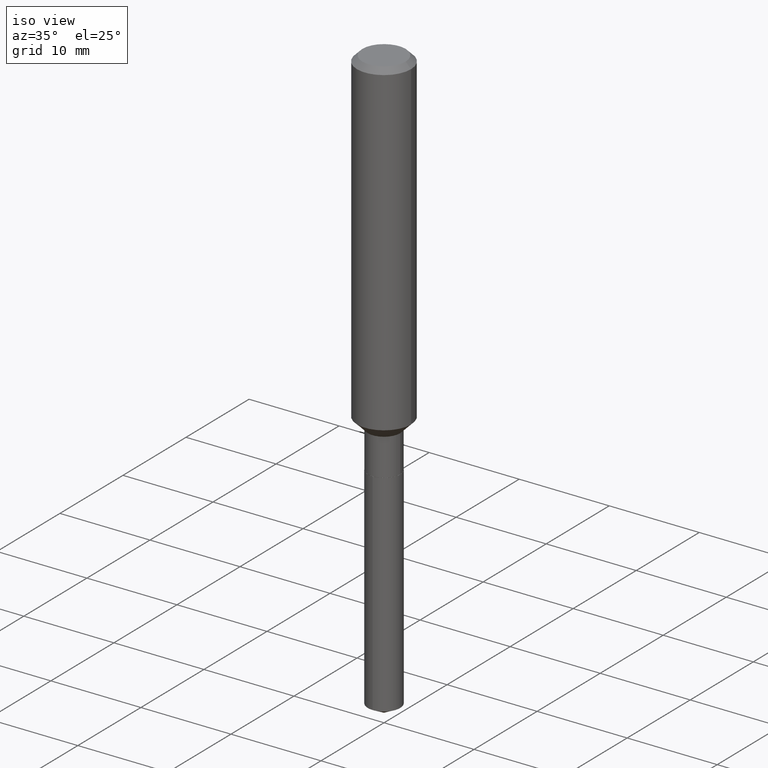
[diagram: clean part render]
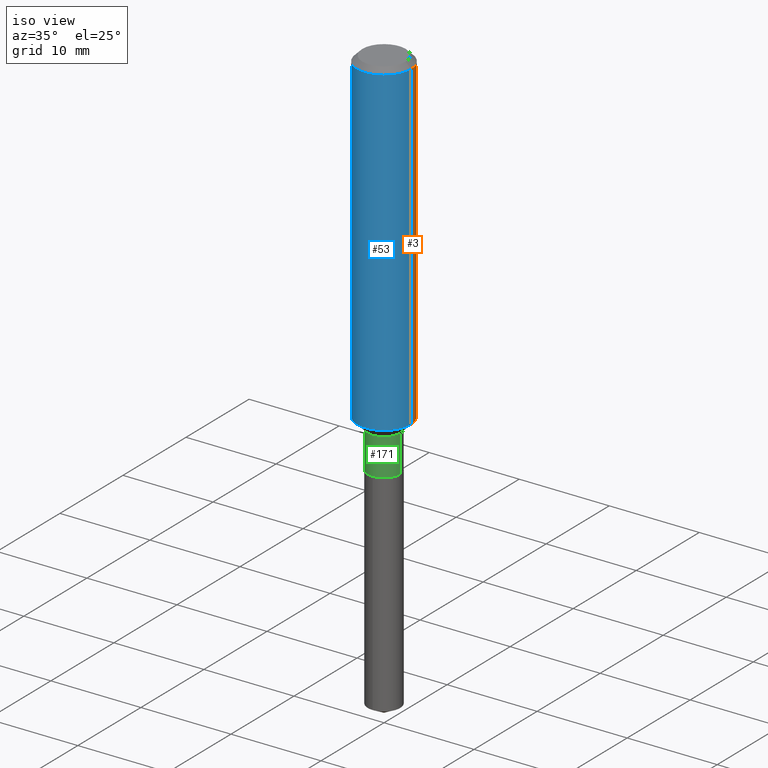
[diagram: same view with three faces highlighted in distinct colors, each labeled with its STEP entity id]
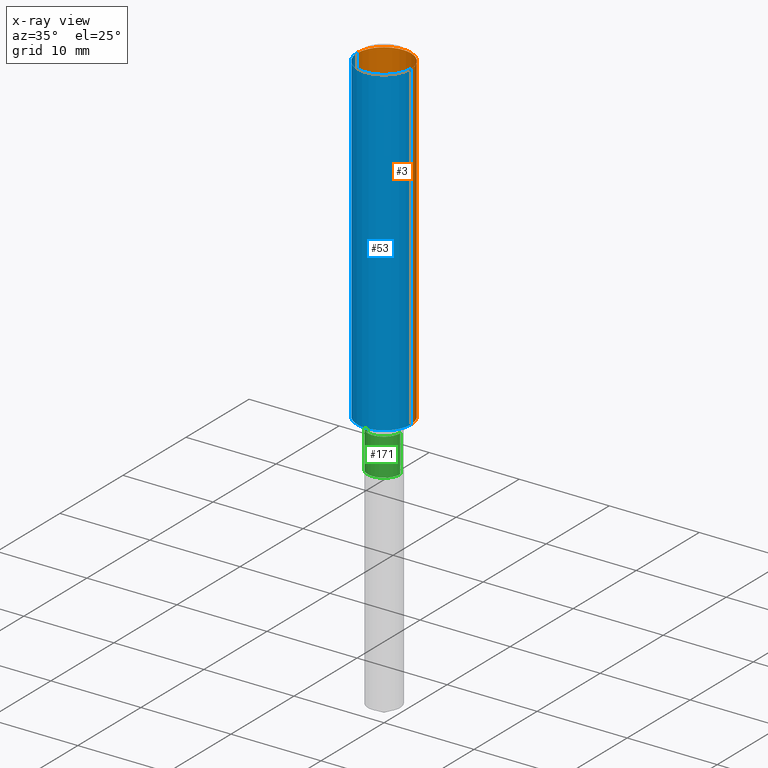
[diagram: x-ray of the same camera — body ghosted, the three highlighted faces saturated]
A machine part, iso view with three faces highlighted in distinct colors.
The next image is the same camera in x-ray (body ghosted, the three faces saturated) — at least one of them is partly hidden behind the body in this view.
Their STEP definitions:

[orange] entity #3 — the highlighted cylindrical surface (edge-blend (fillet) strip) has radius 2.9997 mm, axis along (-0, 0, 1).
#3 = ADVANCED_FACE ( 'NONE', ( #245 ), #367, .T. ) ;
#12 = VECTOR ( 'NONE', #304, 39.37007874015748143 ) ;
#23 = CARTESIAN_POINT ( 'NONE',  ( 5.776197320209328408E-31, -8.246878922347560526E-17, -0.02362000000000014435 ) ) ;
#27 = DIRECTION ( 'NONE',  ( 1.000000000000000000, -6.982962677686270655E-15, 0.000000000000000000 ) ) ;
#35 = EDGE_CURVE ( 'NONE', #373, #275, #216, .T. ) ;
#36 = DIRECTION ( 'NONE',  ( -2.445468806185136597E-29, 3.491481338843145583E-15, 1.000000000000000000 ) ) ;
#56 = DIRECTION ( 'NONE',  ( -2.445468806185136597E-29, 3.491481338843145583E-15, 1.000000000000000000 ) ) ;
#59 = EDGE_CURVE ( 'NONE', #460, #275, #462, .T. ) ;
#77 = DIRECTION ( 'NONE',  ( 1.000000000000000000, -6.982962677686266711E-15, 4.876176775795936353E-29 ) ) ;
#98 = AXIS2_PLACEMENT_3D ( 'NONE', #23, #56, #159 ) ;
#99 = AXIS2_PLACEMENT_3D ( 'NONE', #483, #278, #27 ) ;
#101 = CARTESIAN_POINT ( 'NONE',  ( 0.1181000000000001632, -5.808602929366397200E-15, -1.427449999999999886 ) ) ;
#159 = DIRECTION ( 'NONE',  ( 1.000000000000000000, -6.982962677686266711E-15, 0.000000000000000000 ) ) ;
#175 = LINE ( 'NONE', #360, #324 ) ;
#216 = CIRCLE ( 'NONE', #98, 0.1180999999999999966 ) ;
#237 = AXIS2_PLACEMENT_3D ( 'NONE', #408, #36, #77 ) ;
#245 = FACE_OUTER_BOUND ( 'NONE', #406, .T. ) ;
#275 = VERTEX_POINT ( 'NONE', #440 ) ;
#278 = DIRECTION ( 'NONE',  ( -2.445468806185136597E-29, 3.491481338843145583E-15, 1.000000000000000000 ) ) ;
#288 = CARTESIAN_POINT ( 'NONE',  ( 0.1180999999999999966, -9.071566814582237199E-16, -0.02362000000000014435 ) ) ;
#304 = DIRECTION ( 'NONE',  ( -2.445468806185136877E-29, 3.491481338843145188E-15, 1.000000000000000000 ) ) ;
#309 = ORIENTED_EDGE ( 'NONE', *, *, #323, .F. ) ;
#320 = VERTEX_POINT ( 'NONE', #101 ) ;
#323 = EDGE_CURVE ( 'NONE', #320, #373, #175, .T. ) ;
#324 = VECTOR ( 'NONE', #395, 39.37007874015748143 ) ;
#328 = ORIENTED_EDGE ( 'NONE', *, *, #35, .F. ) ;
#333 = EDGE_CURVE ( 'NONE', #320, #460, #354, .T. ) ;
#354 = CIRCLE ( 'NONE', #99, 0.1181000000000001632 ) ;
#360 = CARTESIAN_POINT ( 'NONE',  ( 0.1181000000000000799, -8.246878922347486570E-16, 5.758764772215004644E-30 ) ) ;
#367 = CYLINDRICAL_SURFACE ( 'NONE', #237, 0.1181000000000000799 ) ;
#373 = VERTEX_POINT ( 'NONE', #288 ) ;
#384 = CARTESIAN_POINT ( 'NONE',  ( -0.1181000000000000799, 8.391509709326788873E-16, -5.809262341591047988E-30 ) ) ;
#395 = DIRECTION ( 'NONE',  ( -2.445468806185136877E-29, 3.491481338843145188E-15, 1.000000000000000000 ) ) ;
#406 = EDGE_LOOP ( 'NONE', ( #436, #446, #328, #309 ) ) ;
#407 = CARTESIAN_POINT ( 'NONE',  ( -0.1181000000000001632, -4.144764066198967584E-15, -1.427449999999999886 ) ) ;
#408 = CARTESIAN_POINT ( 'NONE',  ( 0.000000000000000000, 0.000000000000000000, 0.000000000000000000 ) ) ;
#436 = ORIENTED_EDGE ( 'NONE', *, *, #333, .T. ) ;
#440 = CARTESIAN_POINT ( 'NONE',  ( -0.1180999999999999966, -1.694040942244882028E-15, -0.02362000000000014435 ) ) ;
#446 = ORIENTED_EDGE ( 'NONE', *, *, #59, .T. ) ;
#460 = VERTEX_POINT ( 'NONE', #407 ) ;
#462 = LINE ( 'NONE', #384, #12 ) ;
#483 = CARTESIAN_POINT ( 'NONE',  ( 3.490784447388972920E-29, -4.983915037131647359E-15, -1.427449999999999886 ) ) ;

[blue] entity #53 — the highlighted cylindrical surface (edge-blend (fillet) strip) has radius 2.9997 mm, axis along (-0, 0, 1).
#7 = ORIENTED_EDGE ( 'NONE', *, *, #390, .T. ) ;
#12 = VECTOR ( 'NONE', #304, 39.37007874015748143 ) ;
#18 = CARTESIAN_POINT ( 'NONE',  ( 0.000000000000000000, 0.000000000000000000, 0.000000000000000000 ) ) ;
#22 = AXIS2_PLACEMENT_3D ( 'NONE', #372, #46, #452 ) ;
#32 = ORIENTED_EDGE ( 'NONE', *, *, #351, .F. ) ;
#43 = DIRECTION ( 'NONE',  ( 1.000000000000000000, -6.982962677686266711E-15, 0.000000000000000000 ) ) ;
#46 = DIRECTION ( 'NONE',  ( -2.445468806185136597E-29, 3.491481338843145583E-15, 1.000000000000000000 ) ) ;
#53 = ADVANCED_FACE ( 'NONE', ( #386 ), #340, .T. ) ;
#59 = EDGE_CURVE ( 'NONE', #460, #275, #462, .T. ) ;
#88 = CIRCLE ( 'NONE', #22, 0.1181000000000001632 ) ;
#101 = CARTESIAN_POINT ( 'NONE',  ( 0.1181000000000001632, -5.808602929366397200E-15, -1.427449999999999886 ) ) ;
#110 = AXIS2_PLACEMENT_3D ( 'NONE', #207, #318, #43 ) ;
#111 = ORIENTED_EDGE ( 'NONE', *, *, #323, .T. ) ;
#145 = ORIENTED_EDGE ( 'NONE', *, *, #59, .F. ) ;
#175 = LINE ( 'NONE', #360, #324 ) ;
#207 = CARTESIAN_POINT ( 'NONE',  ( 5.776197320209328408E-31, -8.246878922347560526E-17, -0.02362000000000014435 ) ) ;
#224 = DIRECTION ( 'NONE',  ( 1.000000000000000000, -6.982962677686266711E-15, 4.876176775795936353E-29 ) ) ;
#275 = VERTEX_POINT ( 'NONE', #440 ) ;
#288 = CARTESIAN_POINT ( 'NONE',  ( 0.1180999999999999966, -9.071566814582237199E-16, -0.02362000000000014435 ) ) ;
#304 = DIRECTION ( 'NONE',  ( -2.445468806185136877E-29, 3.491481338843145188E-15, 1.000000000000000000 ) ) ;
#318 = DIRECTION ( 'NONE',  ( -2.445468806185136597E-29, 3.491481338843145583E-15, 1.000000000000000000 ) ) ;
#320 = VERTEX_POINT ( 'NONE', #101 ) ;
#323 = EDGE_CURVE ( 'NONE', #320, #373, #175, .T. ) ;
#324 = VECTOR ( 'NONE', #395, 39.37007874015748143 ) ;
#340 = CYLINDRICAL_SURFACE ( 'NONE', #466, 0.1181000000000000799 ) ;
#351 = EDGE_CURVE ( 'NONE', #275, #373, #424, .T. ) ;
#360 = CARTESIAN_POINT ( 'NONE',  ( 0.1181000000000000799, -8.246878922347486570E-16, 5.758764772215004644E-30 ) ) ;
#372 = CARTESIAN_POINT ( 'NONE',  ( 3.490784447388972920E-29, -4.983915037131647359E-15, -1.427449999999999886 ) ) ;
#373 = VERTEX_POINT ( 'NONE', #288 ) ;
#384 = CARTESIAN_POINT ( 'NONE',  ( -0.1181000000000000799, 8.391509709326788873E-16, -5.809262341591047988E-30 ) ) ;
#386 = FACE_OUTER_BOUND ( 'NONE', #412, .T. ) ;
#390 = EDGE_CURVE ( 'NONE', #460, #320, #88, .T. ) ;
#395 = DIRECTION ( 'NONE',  ( -2.445468806185136877E-29, 3.491481338843145188E-15, 1.000000000000000000 ) ) ;
#407 = CARTESIAN_POINT ( 'NONE',  ( -0.1181000000000001632, -4.144764066198967584E-15, -1.427449999999999886 ) ) ;
#412 = EDGE_LOOP ( 'NONE', ( #145, #7, #111, #32 ) ) ;
#424 = CIRCLE ( 'NONE', #110, 0.1180999999999999966 ) ;
#440 = CARTESIAN_POINT ( 'NONE',  ( -0.1180999999999999966, -1.694040942244882028E-15, -0.02362000000000014435 ) ) ;
#452 = DIRECTION ( 'NONE',  ( 1.000000000000000000, -6.982962677686270655E-15, 0.000000000000000000 ) ) ;
#460 = VERTEX_POINT ( 'NONE', #407 ) ;
#462 = LINE ( 'NONE', #384, #12 ) ;
#465 = DIRECTION ( 'NONE',  ( -2.445468806185136597E-29, 3.491481338843145583E-15, 1.000000000000000000 ) ) ;
#466 = AXIS2_PLACEMENT_3D ( 'NONE', #18, #465, #224 ) ;

[green] entity #171 — the highlighted cylindrical surface (edge-blend (fillet) strip) has radius 1.7996 mm, axis along (-0, 0, 1).
#1 = CARTESIAN_POINT ( 'NONE',  ( 0.07084999999999998244, -5.643630436106058407E-15, -1.474699999999999900 ) ) ;
#5 = CARTESIAN_POINT ( 'NONE',  ( 0.07084999999999998244, -6.210996153668069944E-15, -1.637199999999999989 ) ) ;
#57 = VECTOR ( 'NONE', #382, 39.37007874015748143 ) ;
#60 = CYLINDRICAL_SURFACE ( 'NONE', #251, 0.07084999999999998244 ) ;
#74 = DIRECTION ( 'NONE',  ( 1.000000000000000000, -6.982962677686265133E-15, 0.000000000000000000 ) ) ;
#105 = CARTESIAN_POINT ( 'NONE',  ( 4.003721529486305608E-29, -5.716253247953998478E-15, -1.637199999999999989 ) ) ;
#112 = DIRECTION ( 'NONE',  ( -2.445468806185136597E-29, 3.491481338843145583E-15, 1.000000000000000000 ) ) ;
#120 = DIRECTION ( 'NONE',  ( -2.445468806185136597E-29, 3.491481338843145583E-15, 1.000000000000000000 ) ) ;
#133 = EDGE_LOOP ( 'NONE', ( #273, #201, #180, #249 ) ) ;
#137 = DIRECTION ( 'NONE',  ( 1.000000000000000000, -6.982962677686265133E-15, 0.000000000000000000 ) ) ;
#141 = CARTESIAN_POINT ( 'NONE',  ( 3.606332848481220799E-29, -5.148887530391986941E-15, -1.474699999999999900 ) ) ;
#165 = LINE ( 'NONE', #305, #57 ) ;
#171 = ADVANCED_FACE ( 'NONE', ( #387 ), #60, .T. ) ;
#178 = EDGE_CURVE ( 'NONE', #358, #379, #165, .T. ) ;
#180 = ORIENTED_EDGE ( 'NONE', *, *, #178, .T. ) ;
#196 = CARTESIAN_POINT ( 'NONE',  ( 0.000000000000000000, 0.000000000000000000, 0.000000000000000000 ) ) ;
#197 = EDGE_CURVE ( 'NONE', #370, #358, #292, .T. ) ;
#201 = ORIENTED_EDGE ( 'NONE', *, *, #197, .T. ) ;
#249 = ORIENTED_EDGE ( 'NONE', *, *, #363, .F. ) ;
#250 = DIRECTION ( 'NONE',  ( -2.445468806185136877E-29, 3.491481338843145188E-15, 1.000000000000000000 ) ) ;
#251 = AXIS2_PLACEMENT_3D ( 'NONE', #196, #120, #348 ) ;
#273 = ORIENTED_EDGE ( 'NONE', *, *, #447, .F. ) ;
#277 = AXIS2_PLACEMENT_3D ( 'NONE', #141, #112, #74 ) ;
#284 = CARTESIAN_POINT ( 'NONE',  ( -0.07084999999999998244, 5.034195282860308569E-16, -3.485065511445599567E-30 ) ) ;
#289 = LINE ( 'NONE', #284, #457 ) ;
#292 = CIRCLE ( 'NONE', #371, 0.07084999999999998244 ) ;
#305 = CARTESIAN_POINT ( 'NONE',  ( 0.07084999999999998244, -4.947429057140718608E-16, 3.454771245651419209E-30 ) ) ;
#313 = DIRECTION ( 'NONE',  ( -2.445468806185136597E-29, 3.491481338843145583E-15, 1.000000000000000000 ) ) ;
#330 = VERTEX_POINT ( 'NONE', #487 ) ;
#348 = DIRECTION ( 'NONE',  ( 1.000000000000000000, -6.982962677686266711E-15, 4.876176775795935232E-29 ) ) ;
#358 = VERTEX_POINT ( 'NONE', #5 ) ;
#363 = EDGE_CURVE ( 'NONE', #330, #379, #366, .T. ) ;
#366 = CIRCLE ( 'NONE', #277, 0.07084999999999998244 ) ;
#370 = VERTEX_POINT ( 'NONE', #445 ) ;
#371 = AXIS2_PLACEMENT_3D ( 'NONE', #105, #313, #137 ) ;
#379 = VERTEX_POINT ( 'NONE', #1 ) ;
#382 = DIRECTION ( 'NONE',  ( -2.445468806185136877E-29, 3.491481338843145188E-15, 1.000000000000000000 ) ) ;
#387 = FACE_OUTER_BOUND ( 'NONE', #133, .T. ) ;
#445 = CARTESIAN_POINT ( 'NONE',  ( -0.07084999999999999631, -4.929150860886961951E-15, -1.637199999999999989 ) ) ;
#447 = EDGE_CURVE ( 'NONE', #370, #330, #289, .T. ) ;
#457 = VECTOR ( 'NONE', #250, 39.37007874015748143 ) ;
#487 = CARTESIAN_POINT ( 'NONE',  ( -0.07084999999999998244, -4.929150860886961951E-15, -1.474699999999999900 ) ) ;